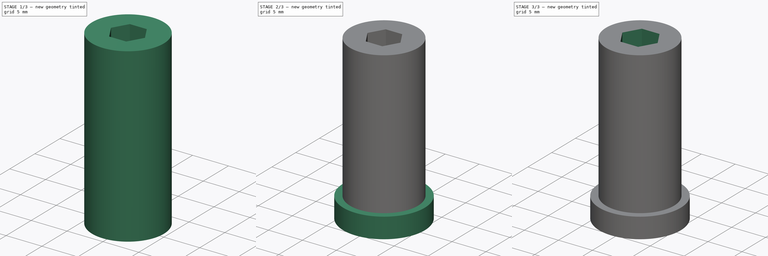
[diagram: build sequence overview — one tinted view per stage of 3, left to right]
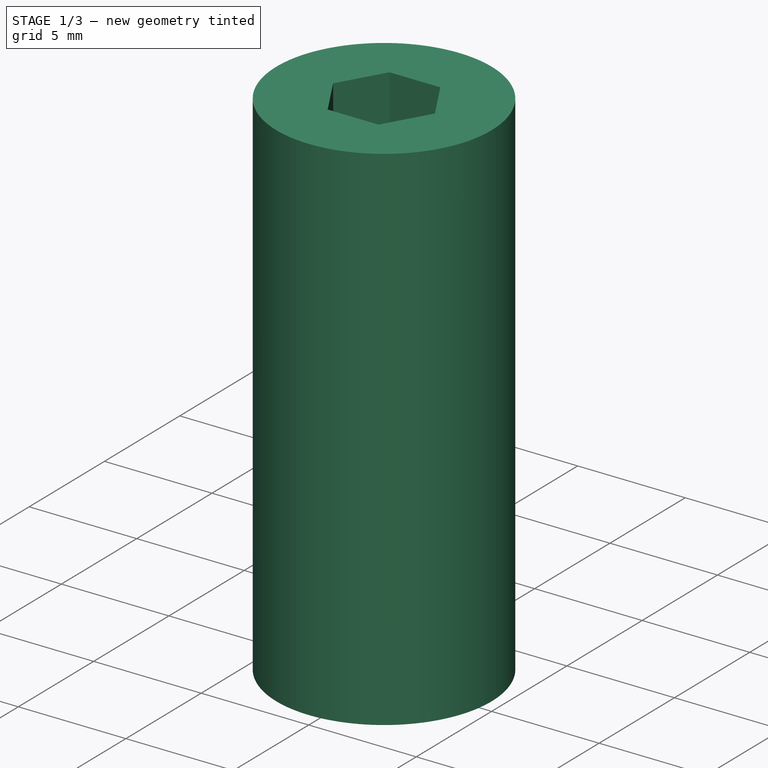
[diagram: stage 1 of 3 — iso view after this stage's code; geometry added in this stage tinted green]
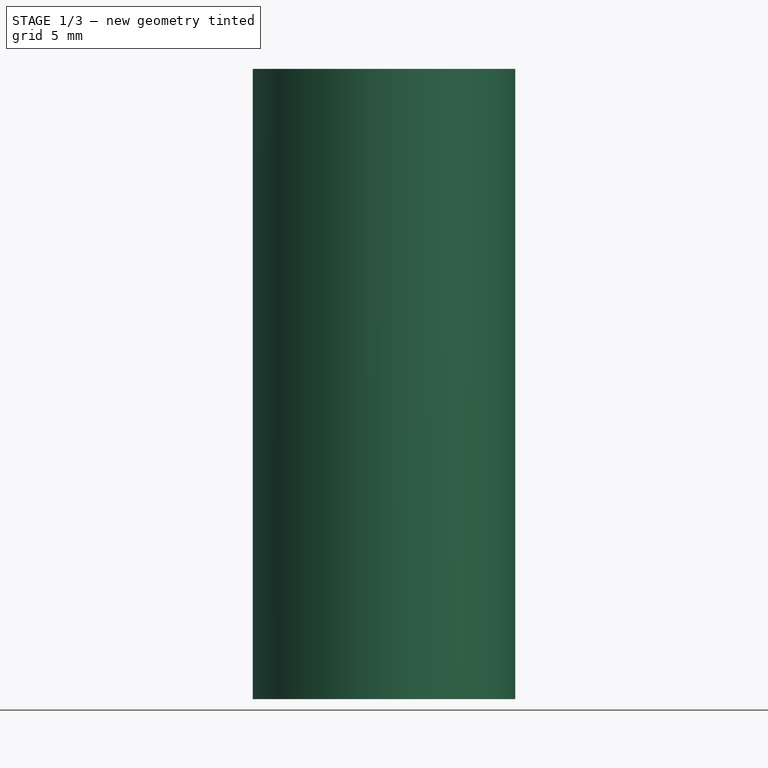
[diagram: stage 1 of 3 — front view after this stage's code; geometry added in this stage tinted green]
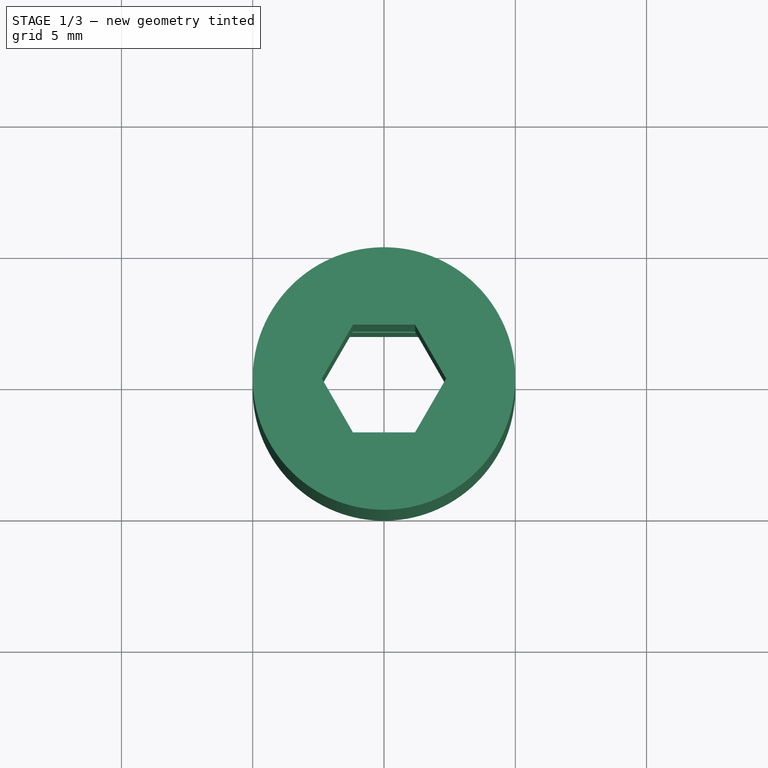
[diagram: stage 1 of 3 — top view after this stage's code; geometry added in this stage tinted green]
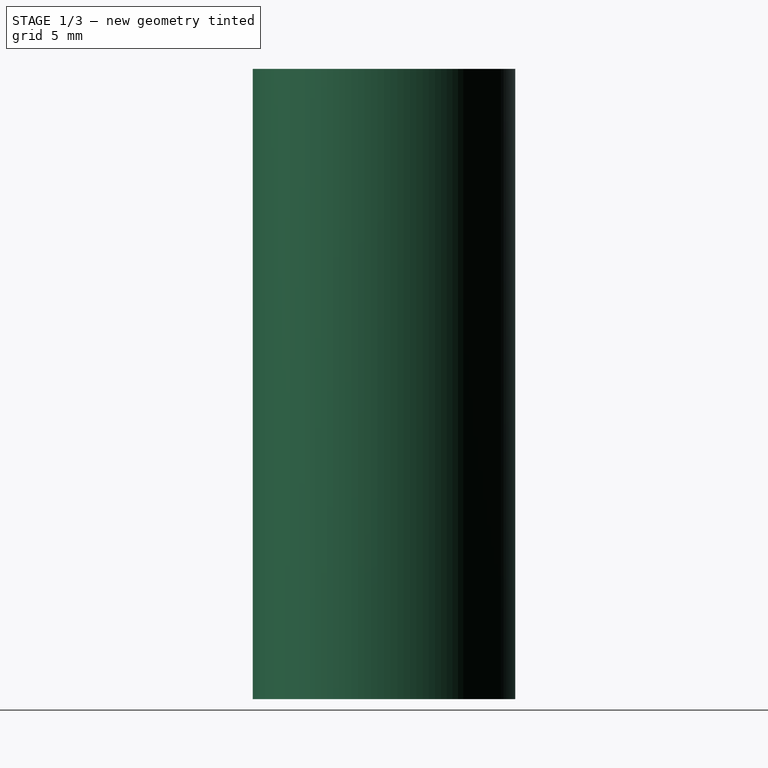
[diagram: stage 1 of 3 — right view after this stage's code; geometry added in this stage tinted green]
FCSTD DOCUMENT  (FreeCAD 0.18.4R)
Label: screwdriverdiy
License: All rights reserved
LicenseURL: http://en.wikipedia.org/wiki/All_rights_reserved
objects: Sketcher::SketchObject×8, PartDesign::Pocket×6, PartDesign::Pad×2, PartDesign::Body×1
note: 25 computed .brp shape members not serialized (recipe doc carries the construction recipe); baked Part::Feature solids carry a one-line shape summary decoded from their .brp

FEATURE [Sketcher::SketchObject] Sketch
  MapMode = 5
  Support = -> [XY_Plane]
  sketch-geometry (6):
    g0: ArcOfCircle CenterX=0 CenterY=0 CenterZ=0 NormalX=0 NormalY=0 NormalZ=1 AngleXU=0 Radius=3 StartAngle=2.41186 EndAngle=3.87132
    g1: LineSegment StartX=-2.23607 StartY=2 StartZ=0 EndX=2.23607 EndY=2 EndZ=0
    g2: LineSegment [constr] StartX=2.23607 StartY=2 StartZ=0 EndX=2.23607 EndY=-2 EndZ=0
    g3: LineSegment StartX=2.23607 StartY=-2 StartZ=0 EndX=-2.23607 EndY=-2 EndZ=0
    g4: LineSegment [constr] StartX=-2.23607 StartY=-2 StartZ=0 EndX=-2.23607 EndY=2 EndZ=0
    g5: ArcOfCircle CenterX=0 CenterY=0 CenterZ=0 NormalX=0 NormalY=0 NormalZ=1 AngleXU=0 Radius=3 StartAngle=5.55346 EndAngle=7.01291
  constraints (15):
    c: Coincident(g0,g-1)
    c: Diameter(g0) = 6
    c: Coincident(g1,g2)
    c: Coincident(g2,g3)
    c: Coincident(g3,g4)
    c: Horizontal(g3)
    c: Vertical(g2)
    c: PointOnObject(g4,g0)
    c: DistanceY(g2,g2) = 4
    c: Coincident(g0,g1)
    c: Coincident(g5,g1)
    c: Equal(g0,g5)
    c: PointOnObject(g0,g3)
    c: PointOnObject(g5,g2)
    c: Coincident(g0,g5)
FEATURE [Sketcher::SketchObject] Sketch001
  MapMode = 5
  Support = -> [XY_Plane]
  sketch-geometry (1):
    g0: Circle CenterX=0 CenterY=0 CenterZ=0 NormalX=0 NormalY=0 NormalZ=1 AngleXU=0 Radius=5
  constraints (2):
    c: Coincident(g0,g-1)
    c: Diameter(g0) = 10
FEATURE [PartDesign::Pad] Pad  label="main"
  Length = 24
  Length2 = 100
  Profile = -> Sketch001
  Type = 0
FEATURE [PartDesign::Pocket] Pocket  label="pocket-motor"
  BaseFeature = -> Pad
  Length = 9
  Length2 = 100
  Profile = -> Sketch
  Reversed = true
  Type = 0
FEATURE [Sketcher::SketchObject] Sketch002
  MapMode = 5
  Placement = pos=(0,0,24) rot=(0,0,1;0rad)
  Support = -> [Pocket]
  sketch-geometry (7):
    g0: LineSegment StartX=1.18357 StartY=-2.05 StartZ=0 EndX=2.36714 EndY=-4.8805e-12 EndZ=0
    g1: LineSegment StartX=2.36714 StartY=-4.8807e-12 StartZ=0 EndX=1.18357 EndY=2.05 EndZ=0
    g2: LineSegment StartX=1.18357 StartY=2.05 StartZ=0 EndX=-1.18357 EndY=2.05 EndZ=0
    g3: LineSegment StartX=-1.18357 StartY=2.05 StartZ=0 EndX=-2.36714 EndY=-4.8805e-12 EndZ=0
    g4: LineSegment StartX=-2.36714 StartY=-4.8805e-12 StartZ=0 EndX=-1.18357 EndY=-2.05 EndZ=0
    g5: LineSegment StartX=-1.18357 StartY=-2.05 StartZ=0 EndX=1.18357 EndY=-2.05 EndZ=0
    g6: Circle [constr] CenterX=0 CenterY=0 CenterZ=0 NormalX=0 NormalY=0 NormalZ=1 AngleXU=0 Radius=2.36714
  constraints (16):
    c: Coincident(g0,g1)
    c: Coincident(g1,g2)
    c: Coincident(g2,g3)
    c: Coincident(g3,g4)
    c: Coincident(g4,g5)
    c: Coincident(g5,g0)
    c: Equal(g0, g1-g5) x5
    c: PointOnObject(g0,g6)
    c: PointOnObject(g1,g6)
    c: PointOnObject(g2,g6)
    c: PointOnObject(g3,g6)
    c: PointOnObject(g4,g6)
    c: PointOnObject(g5,g6)
    c: Coincident(g6,g-1)
    c: Horizontal(g0,g4)
    c: DistanceY(g0,g1) = 4.1
FEATURE [PartDesign::Pocket] Pocket001  label="pocket-screwdriver-4p1"
  BaseFeature = -> Pocket
  Length = 15
  Length2 = 100
  Profile = -> Sketch002
  Type = 0
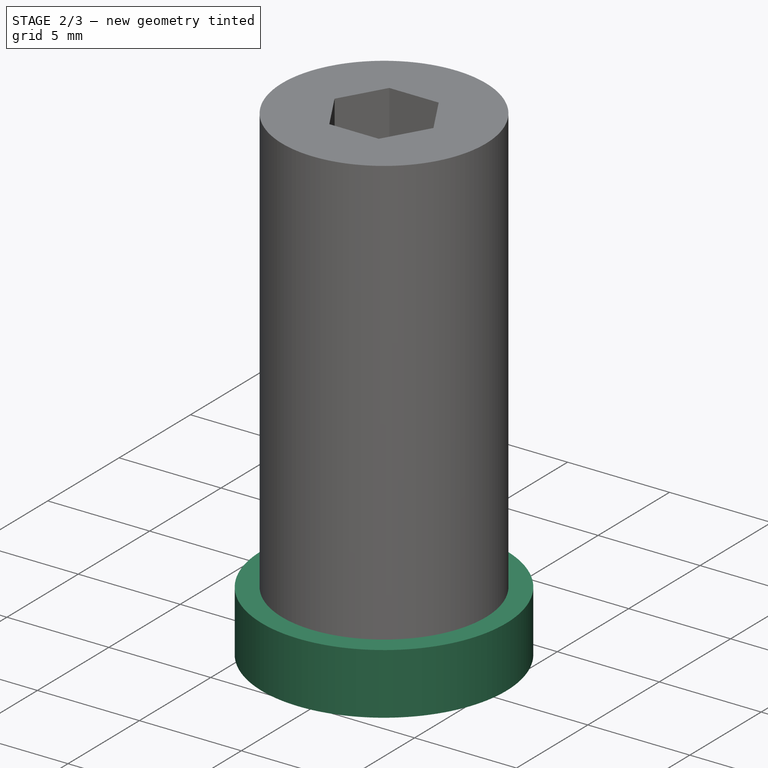
[diagram: stage 2 of 3 — iso view after this stage's code; geometry added in this stage tinted green]
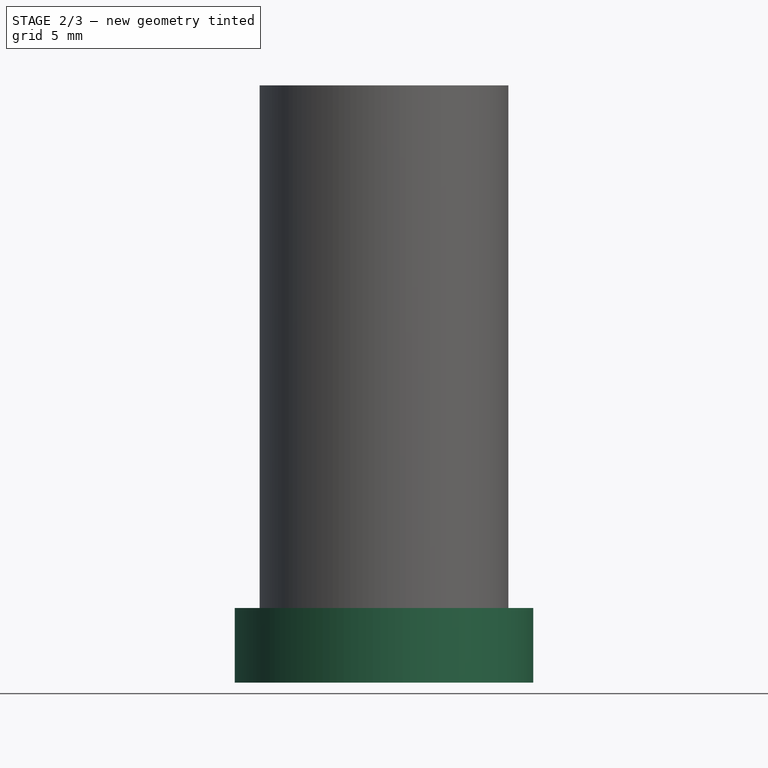
[diagram: stage 2 of 3 — front view after this stage's code; geometry added in this stage tinted green]
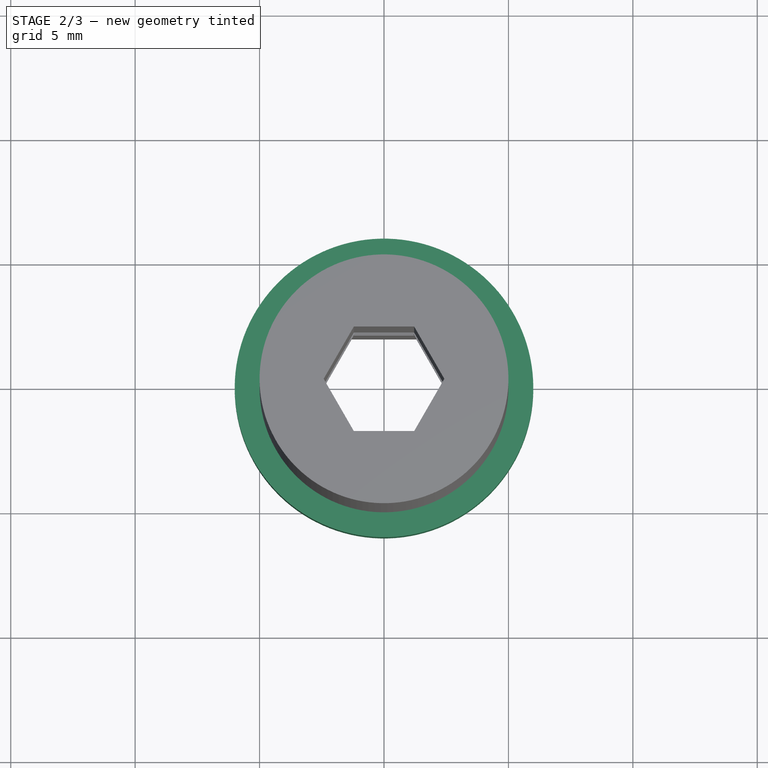
[diagram: stage 2 of 3 — top view after this stage's code; geometry added in this stage tinted green]
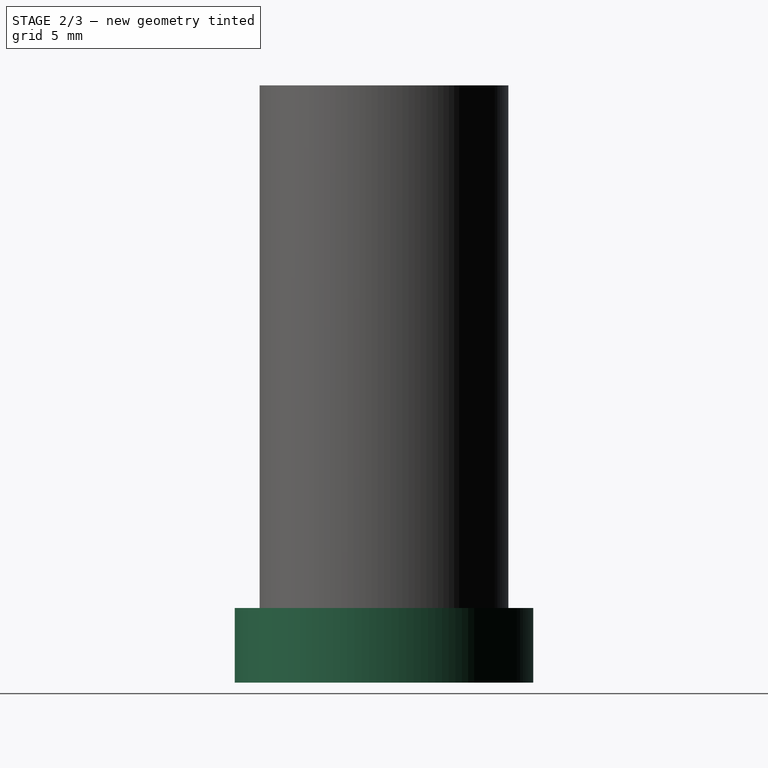
[diagram: stage 2 of 3 — right view after this stage's code; geometry added in this stage tinted green]
FEATURE [Sketcher::SketchObject] Sketch003
  MapMode = 5
  Placement = pos=(0,0,0) rot=(1,0,0;3.14159rad)
  Support = -> [Pocket001]
  sketch-geometry (2):
    g0: Circle CenterX=0 CenterY=0 CenterZ=0 NormalX=0 NormalY=0 NormalZ=1 AngleXU=0 Radius=6
    g1: Circle CenterX=0 CenterY=0 CenterZ=0 NormalX=0 NormalY=0 NormalZ=1 AngleXU=0 Radius=4.5
  constraints (4):
    c: Coincident(g0,g-1)
    c: Coincident(g1,g0)
    c: Diameter(g1) = 9
    c: Diameter(g0) = 12
FEATURE [PartDesign::Pad] Pad001  label="brim"
  BaseFeature = -> Pocket001
  Length = 3
  Length2 = 100
  Profile = -> Sketch003
  Reversed = true
  Type = 0
FEATURE [Sketcher::SketchObject] Sketch004
  MapMode = 5
  Placement = pos=(0,0,24) rot=(0,0,1;0rad)
  Support = -> [Pocket001]
  sketch-geometry (7):
    g0: LineSegment StartX=1.21244 StartY=-2.1 StartZ=0 EndX=2.42487 EndY=0 EndZ=0
    g1: LineSegment StartX=2.42487 StartY=-1e-16 StartZ=0 EndX=1.21244 EndY=2.1 EndZ=0
    g2: LineSegment StartX=1.21244 StartY=2.1 StartZ=0 EndX=-1.21244 EndY=2.1 EndZ=0
    g3: LineSegment StartX=-1.21244 StartY=2.1 StartZ=0 EndX=-2.42487 EndY=0 EndZ=0
    g4: LineSegment StartX=-2.42487 StartY=1e-16 StartZ=0 EndX=-1.21244 EndY=-2.1 EndZ=0
    g5: LineSegment StartX=-1.21244 StartY=-2.1 StartZ=0 EndX=1.21244 EndY=-2.1 EndZ=0
    g6: Circle [constr] CenterX=0 CenterY=0 CenterZ=0 NormalX=0 NormalY=0 NormalZ=1 AngleXU=0 Radius=2.42487
  constraints (16):
    c: Coincident(g0,g1)
    c: Coincident(g1,g2)
    c: Coincident(g2,g3)
    c: Coincident(g3,g4)
    c: Coincident(g4,g5)
    c: Coincident(g5,g0)
    c: Equal(g0, g1-g5) x5
    c: PointOnObject(g0,g6)
    c: PointOnObject(g1,g6)
    c: PointOnObject(g2,g6)
    c: PointOnObject(g3,g6)
    c: PointOnObject(g4,g6)
    c: PointOnObject(g5,g6)
    c: Coincident(g6,g-1)
    c: Horizontal(g5)
    c: DistanceY(g0,g1) = 4.2
FEATURE [PartDesign::Pocket] Pocket002  label="p-s-4p2"
  BaseFeature = -> Pad001
  Length = 14
  Length2 = 100
  Profile = -> Sketch004
  Type = 0
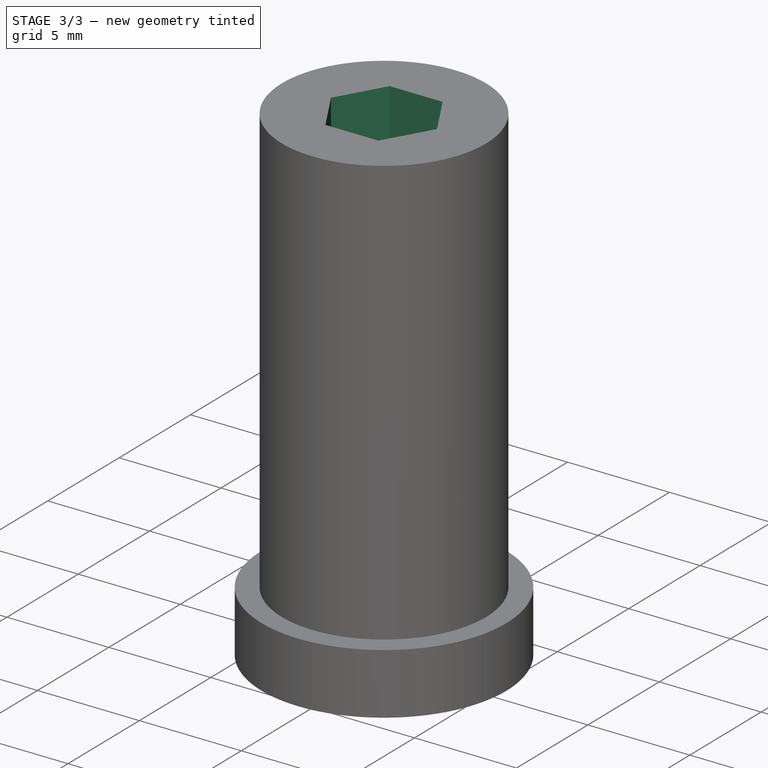
[diagram: stage 3 of 3 — iso view after this stage's code; geometry added in this stage tinted green]
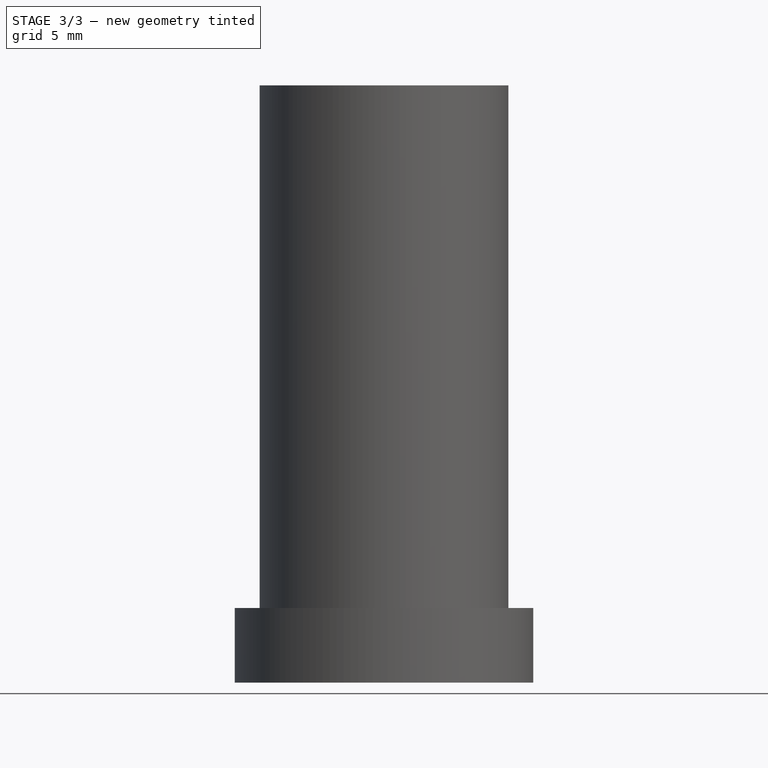
[diagram: stage 3 of 3 — front view after this stage's code; geometry added in this stage tinted green]
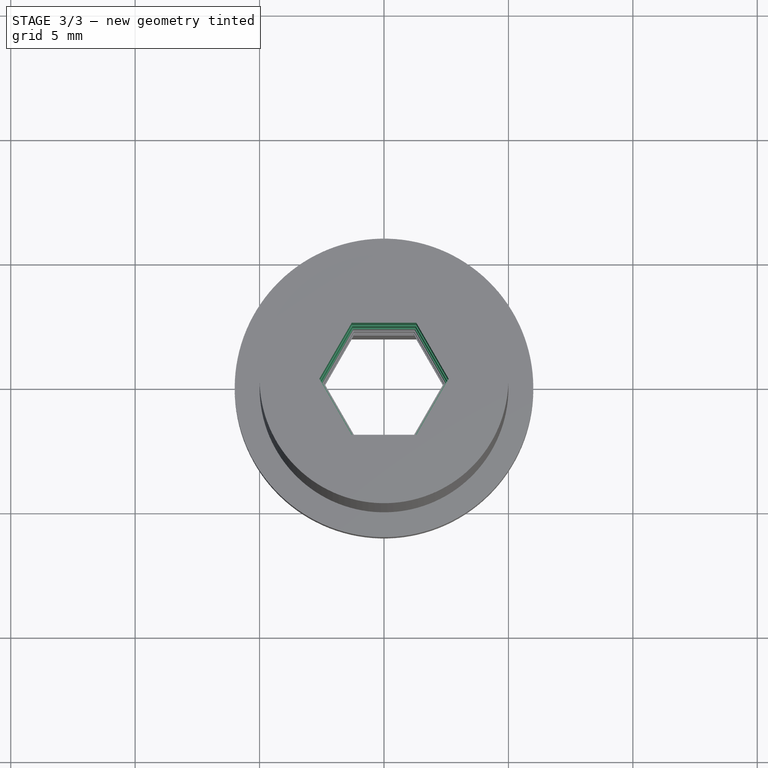
[diagram: stage 3 of 3 — top view after this stage's code; geometry added in this stage tinted green]
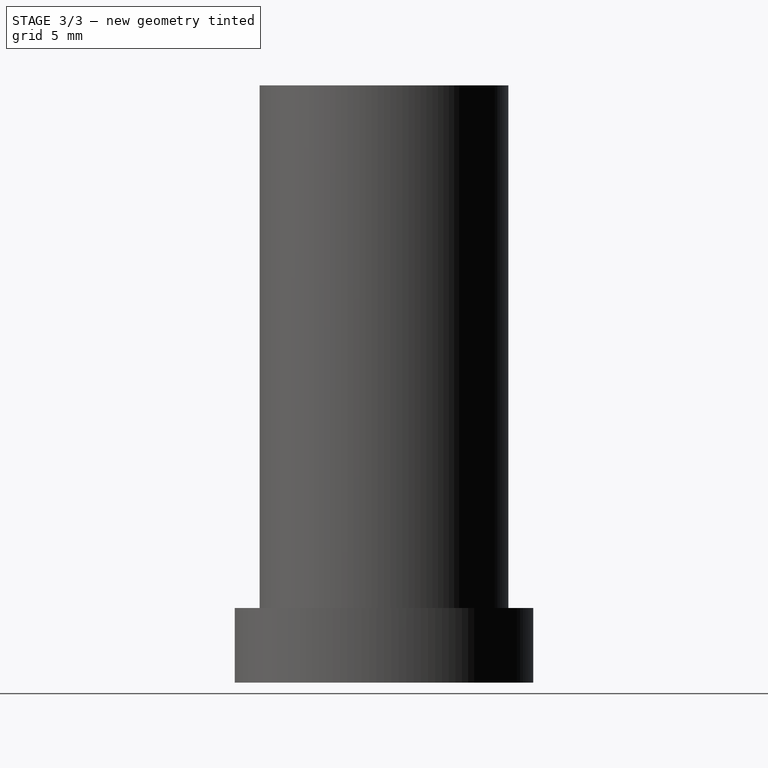
[diagram: stage 3 of 3 — right view after this stage's code; geometry added in this stage tinted green]
FEATURE [Sketcher::SketchObject] Sketch005
  MapMode = 5
  Placement = pos=(0,0,24) rot=(0,0,1;0rad)
  Support = -> [Pocket002]
  sketch-geometry (7):
    g0: LineSegment StartX=1.2413 StartY=-2.15 StartZ=0 EndX=2.48261 EndY=-3.0713e-12 EndZ=0
    g1: LineSegment StartX=2.48261 StartY=-3.0713e-12 StartZ=0 EndX=1.2413 EndY=2.15 EndZ=0
    g2: LineSegment StartX=1.2413 StartY=2.15 StartZ=0 EndX=-1.2413 EndY=2.15 EndZ=0
    g3: LineSegment StartX=-1.2413 StartY=2.15 StartZ=0 EndX=-2.48261 EndY=-2.3714e-12 EndZ=0
    g4: LineSegment StartX=-2.48261 StartY=-2.3714e-12 StartZ=0 EndX=-1.2413 EndY=-2.15 EndZ=0
    g5: LineSegment StartX=-1.2413 StartY=-2.15 StartZ=0 EndX=1.2413 EndY=-2.15 EndZ=0
    g6: Circle [constr] CenterX=0 CenterY=0 CenterZ=0 NormalX=0 NormalY=0 NormalZ=1 AngleXU=0 Radius=2.48261
  constraints (16):
    c: Coincident(g0,g1)
    c: Coincident(g1,g2)
    c: Coincident(g2,g3)
    c: Coincident(g3,g4)
    c: Coincident(g4,g5)
    c: Coincident(g5,g0)
    c: Equal(g0, g1-g5) x5
    c: PointOnObject(g0,g6)
    c: PointOnObject(g1,g6)
    c: PointOnObject(g2,g6)
    c: PointOnObject(g3,g6)
    c: PointOnObject(g4,g6)
    c: PointOnObject(g5,g6)
    c: Coincident(g6,g-1)
    c: Horizontal(g5)
    c: DistanceY(g0,g1) = 4.3
FEATURE [PartDesign::Pocket] Pocket003  label="p-s-4p3"
  BaseFeature = -> Pocket002
  Length = 12
  Length2 = 100
  Profile = -> Sketch005
  Type = 0
FEATURE [Sketcher::SketchObject] Sketch006
  MapMode = 5
  Placement = pos=(0,0,24) rot=(0,0,1;0rad)
  Support = -> [Pocket003]
  sketch-geometry (7):
    g0: LineSegment StartX=1.27017 StartY=-2.2 StartZ=0 EndX=2.54034 EndY=0 EndZ=0
    g1: LineSegment StartX=2.54034 StartY=0 StartZ=0 EndX=1.27017 EndY=2.2 EndZ=0
    g2: LineSegment StartX=1.27017 StartY=2.2 StartZ=0 EndX=-1.27017 EndY=2.2 EndZ=0
    g3: LineSegment StartX=-1.27017 StartY=2.2 StartZ=0 EndX=-2.54034 EndY=0 EndZ=0
    g4: LineSegment StartX=-2.54034 StartY=2e-16 StartZ=0 EndX=-1.27017 EndY=-2.2 EndZ=0
    g5: LineSegment StartX=-1.27017 StartY=-2.2 StartZ=0 EndX=1.27017 EndY=-2.2 EndZ=0
    g6: Circle [constr] CenterX=0 CenterY=0 CenterZ=0 NormalX=0 NormalY=0 NormalZ=1 AngleXU=0 Radius=2.54034
  constraints (16):
    c: Coincident(g0,g1)
    c: Coincident(g1,g2)
    c: Coincident(g2,g3)
    c: Coincident(g3,g4)
    c: Coincident(g4,g5)
    c: Coincident(g5,g0)
    c: Equal(g0, g1-g5) x5
    c: PointOnObject(g0,g6)
    c: PointOnObject(g1,g6)
    c: PointOnObject(g2,g6)
    c: PointOnObject(g3,g6)
    c: PointOnObject(g4,g6)
    c: PointOnObject(g5,g6)
    c: Coincident(g6,g-1)
    c: Horizontal(g5)
    c: DistanceY(g0,g1) = 4.4
FEATURE [PartDesign::Pocket] Pocket004  label="p-s-4p4"
  BaseFeature = -> Pocket003
  Length = 9
  Length2 = 100
  Profile = -> Sketch006
  Type = 0
FEATURE [Sketcher::SketchObject] Sketch007
  MapMode = 5
  Placement = pos=(0,0,24) rot=(0,0,1;0rad)
  Support = -> [Pocket004]
  sketch-geometry (7):
    g0: LineSegment StartX=1.29904 StartY=-2.25 StartZ=0 EndX=2.59808 EndY=-4.4e-15 EndZ=0
    g1: LineSegment StartX=2.59808 StartY=-4.4e-15 StartZ=0 EndX=1.29904 EndY=2.25 EndZ=0
    g2: LineSegment StartX=1.29904 StartY=2.25 StartZ=0 EndX=-1.29904 EndY=2.25 EndZ=0
    g3: LineSegment StartX=-1.29904 StartY=2.25 StartZ=0 EndX=-2.59808 EndY=-4e-15 EndZ=0
    g4: LineSegment StartX=-2.59808 StartY=-3.8e-15 StartZ=0 EndX=-1.29904 EndY=-2.25 EndZ=0
    g5: LineSegment StartX=-1.29904 StartY=-2.25 StartZ=0 EndX=1.29904 EndY=-2.25 EndZ=0
    g6: Circle [constr] CenterX=0 CenterY=0 CenterZ=0 NormalX=0 NormalY=0 NormalZ=1 AngleXU=0 Radius=2.59808
  constraints (16):
    c: Coincident(g0,g1)
    c: Coincident(g1,g2)
    c: Coincident(g2,g3)
    c: Coincident(g3,g4)
    c: Coincident(g4,g5)
    c: Coincident(g5,g0)
    c: Equal(g0, g1-g5) x5
    c: PointOnObject(g0,g6)
    c: PointOnObject(g1,g6)
    c: PointOnObject(g2,g6)
    c: PointOnObject(g3,g6)
    c: PointOnObject(g4,g6)
    c: PointOnObject(g5,g6)
    c: Coincident(g6,g-1)
    c: Horizontal(g5)
    c: DistanceY(g0,g1) = 4.5
FEATURE [PartDesign::Pocket] Pocket005  label="p-s-4p5"
  BaseFeature = -> Pocket004
  Length = 5
  Length2 = 100
  Profile = -> Sketch007
  Type = 0
FEATURE [PartDesign::Body] Body  label="scredrivermount"
  Group = -> [Sketch,Sketch001,Pad,Pocket,Sketch002,Pocket001,Sketch003,Pad001,Sketch004,Pocket002,Sketch005,Pocket003,Sketch006,Pocket004,Sketch007,Pocket005]
  Origin = -> Origin
  Tip = -> Pocket005
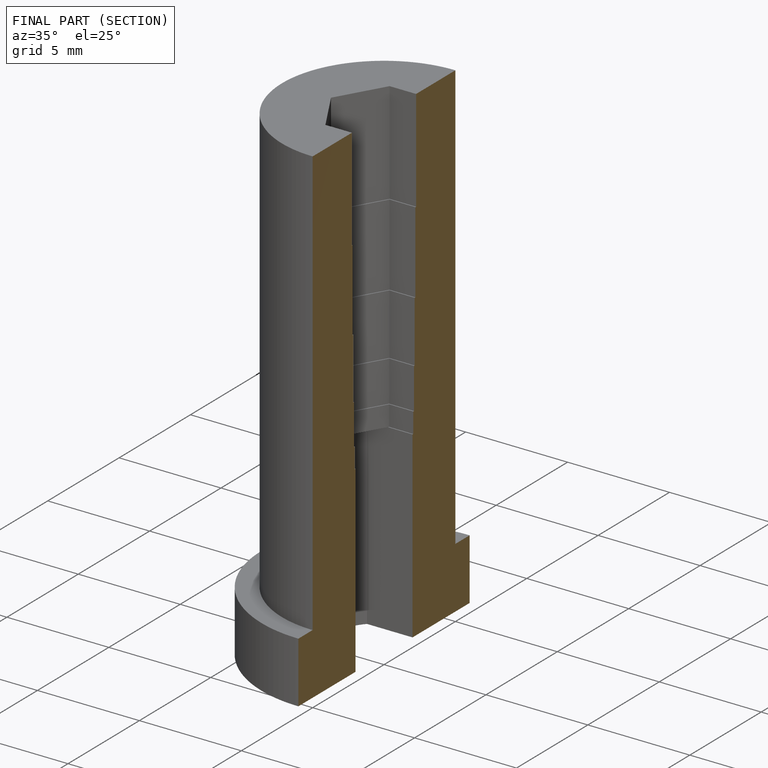
[diagram: finished part — half-section view (interior)]
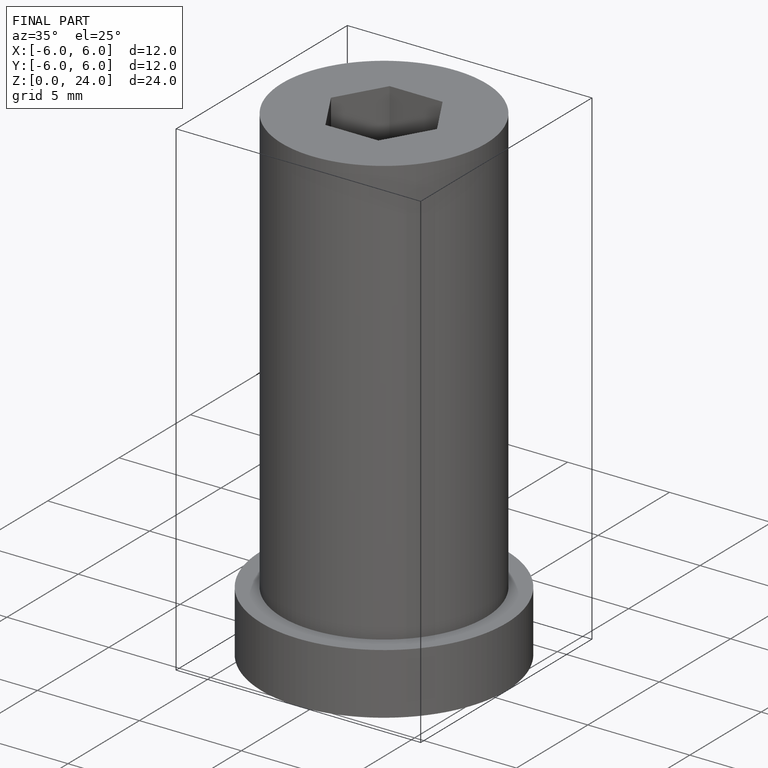
[diagram: finished part — iso view with bounding-box wireframe]
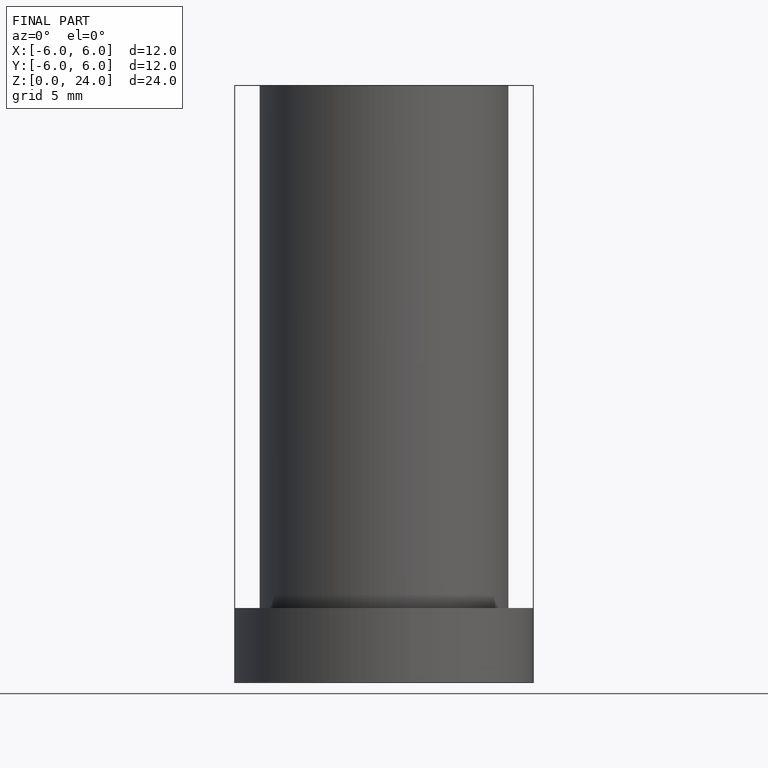
[diagram: finished part — front view with bounding-box wireframe]
